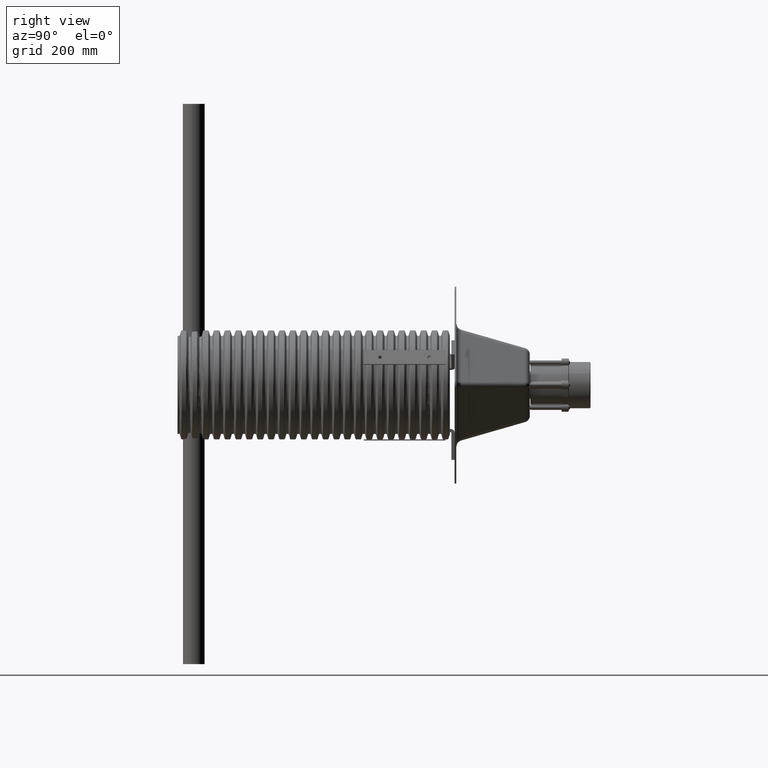
[diagram: clean part render]
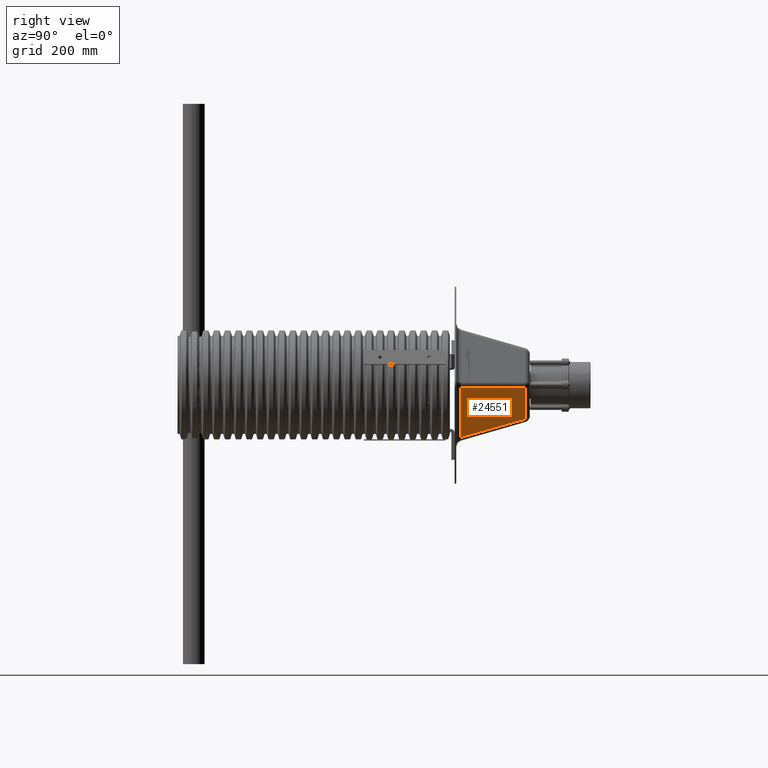
[diagram: same view with one face highlighted and labeled with its STEP entity id]
A machine part, right view. The second image highlights one B-rep face of the part: STEP entity #24551.
In plain terms, the highlighted planar face has unit normal (0.8369, 0.2752, -0.4731).
Its self-contained STEP definition (entity closure, byte-faithful):
#333 = CARTESIAN_POINT ( 'NONE',  ( 101.2721832251786225, 54.35628911913339323, 11.69782613155778783 ) ) ;
#5287 = EDGE_CURVE ( 'NONE', #26410, #22108, #39562, .T. ) ;
#6983 = ORIENTED_EDGE ( 'NONE', *, *, #14112, .T. ) ;
#7370 = VERTEX_POINT ( 'NONE', #17141 ) ;
#7513 = DIRECTION ( 'NONE',  ( -9.472722593022467068E-16, 1.000000000000000000, -0.0000000000000000000 ) ) ;
#7786 = CARTESIAN_POINT ( 'NONE',  ( 67.61006919904150436, 6.404514300175729128E-14, 129.3021738684422246 ) ) ;
#9551 = CARTESIAN_POINT ( 'NONE',  ( 101.2721832251786225, 52.91892068284666806, 11.69782613155778073 ) ) ;
#10394 = CARTESIAN_POINT ( 'NONE',  ( 67.61006919904153278, -33.48409008836429734, 129.3021738684422246 ) ) ;
#12696 = VECTOR ( 'NONE', #41656, 1000.000000000000000 ) ;
#13828 = VECTOR ( 'NONE', #18649, 1000.000000000000000 ) ;
#14112 = EDGE_CURVE ( 'NONE', #22108, #24457, #23347, .T. ) ;
#15494 = VECTOR ( 'NONE', #7513, 1000.000000000000000 ) ;
#16679 = CARTESIAN_POINT ( 'NONE',  ( 94.55410107692036092, -49.04023414611155829, 35.16859414319460342 ) ) ;
#17141 = CARTESIAN_POINT ( 'NONE',  ( 101.2721832251787220, -52.91892068284655437, 11.69782613155778428 ) ) ;
#17807 = ORIENTED_EDGE ( 'NONE', *, *, #35852, .T. ) ;
#18247 = DIRECTION ( 'NONE',  ( 0.9613923920781132226, 9.107003433198257909E-16, 0.2751811557035175326 ) ) ;
#18356 = CARTESIAN_POINT ( 'NONE',  ( 94.55410107692027566, 49.04023414611167198, 35.16859414319458210 ) ) ;
#18649 = DIRECTION ( 'NONE',  ( 9.472722593022467068E-16, -1.000000000000000000, -0.0000000000000000000 ) ) ;
#19128 = ORIENTED_EDGE ( 'NONE', *, *, #5287, .T. ) ;
#22108 = VERTEX_POINT ( 'NONE', #23429 ) ;
#22221 = LINE ( 'NONE', #16679, #12696 ) ;
#23347 = LINE ( 'NONE', #7786, #13828 ) ;
#23417 = AXIS2_PLACEMENT_3D ( 'NONE', #39650, #18247, #43220 ) ;
#23429 = CARTESIAN_POINT ( 'NONE',  ( 67.61006919904147594, 33.48409008836441103, 129.3021738684422246 ) ) ;
#24457 = VERTEX_POINT ( 'NONE', #10394 ) ;
#24551 = ADVANCED_FACE ( 'NONE', ( #34026 ), #25268, .T. ) ;
#25268 = PLANE ( 'NONE',  #23417 ) ;
#26410 = VERTEX_POINT ( 'NONE', #9551 ) ;
#26845 = ORIENTED_EDGE ( 'NONE', *, *, #41426, .T. ) ;
#29075 = EDGE_LOOP ( 'NONE', ( #26845, #17807, #19128, #6983 ) ) ;
#34026 = FACE_OUTER_BOUND ( 'NONE', #29075, .T. ) ;
#34523 = LINE ( 'NONE', #333, #15494 ) ;
#35852 = EDGE_CURVE ( 'NONE', #7370, #26410, #34523, .T. ) ;
#39562 = LINE ( 'NONE', #18356, #41799 ) ;
#39650 = CARTESIAN_POINT ( 'NONE',  ( 96.69812332812038846, 9.159944975531588941E-14, 27.67808602507789573 ) ) ;
#41426 = EDGE_CURVE ( 'NONE', #24457, #7370, #22221, .T. ) ;
#41656 = DIRECTION ( 'NONE',  ( 0.2717725502388410042, -0.1569079550387465494, -0.9494838464040530335 ) ) ;
#41799 = VECTOR ( 'NONE', #43170, 1000.000000000000114 ) ;
#43170 = DIRECTION ( 'NONE',  ( -0.2717725502388406711, -0.1569079550387466049, 0.9494838464040530335 ) ) ;
#43220 = DIRECTION ( 'NONE',  ( 0.2751811557035175326, 0.0000000000000000000, -0.9613923920781132226 ) ) ;